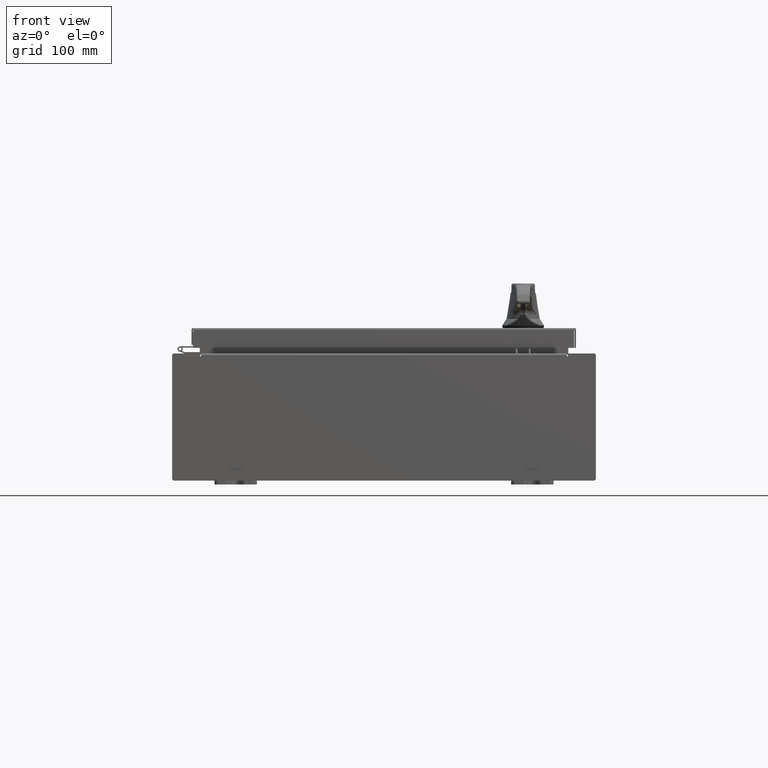
[diagram: clean part render]
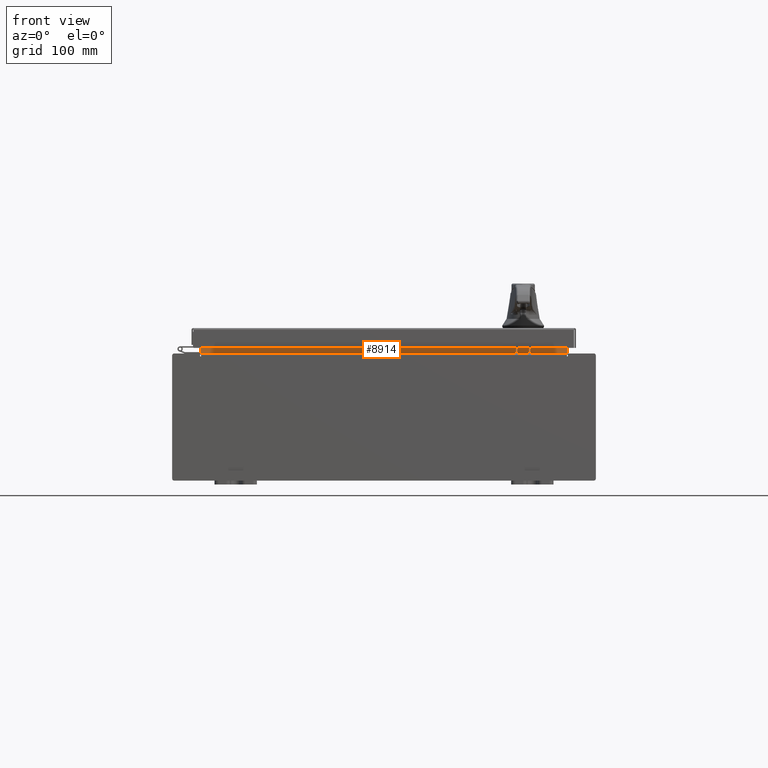
[diagram: same view with one face highlighted and labeled with its STEP entity id]
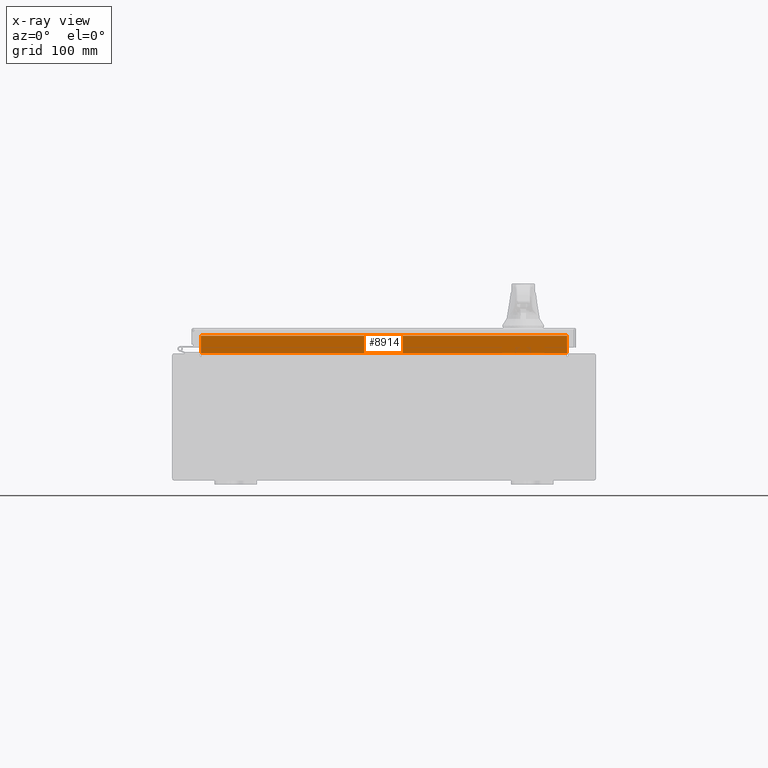
[diagram: x-ray of the same camera — body ghosted, the highlighted face saturated]
A machine part, front view. The second image highlights one B-rep face of the part: STEP entity #8914.
The next image is the same camera in x-ray: the body ghosted, the highlighted face saturated — about 0% of this face is hidden behind the body in this view.
In plain terms, the highlighted planar face has unit normal (0, -1, 0).
Its self-contained STEP definition (entity closure, byte-faithful):
#1230 = VECTOR ( 'NONE', #64705, 39.37007874015748100 ) ;
#3441 = EDGE_CURVE ( 'NONE', #21224, #22073, #47105, .T. ) ;
#4012 = DIRECTION ( 'NONE',  ( 0.0000000000000000000, -0.0000000000000000000, 1.000000000000000000 ) ) ;
#4112 = CARTESIAN_POINT ( 'NONE',  ( -8.637200000000000000, -1.300299999999999800, 3.013000000000005200 ) ) ;
#4935 = VERTEX_POINT ( 'NONE', #24293 ) ;
#5497 = CARTESIAN_POINT ( 'NONE',  ( -8.637200000000000000, -1.300300000000000000, 3.837600000000005000 ) ) ;
#7470 = DIRECTION ( 'NONE',  ( -0.0000000000000000000, -0.0000000000000000000, 1.000000000000000000 ) ) ;
#8914 = ADVANCED_FACE ( 'NONE', ( #40791 ), #107818, .T. ) ;
#8982 = VECTOR ( 'NONE', #7470, 39.37007874015748100 ) ;
#12588 = EDGE_LOOP ( 'NONE', ( #55178, #14768, #62123, #47256 ) ) ;
#13608 = AXIS2_PLACEMENT_3D ( 'NONE', #29788, #55878, #4012 ) ;
#14768 = ORIENTED_EDGE ( 'NONE', *, *, #72619, .F. ) ;
#15998 = EDGE_CURVE ( 'NONE', #101447, #4935, #32000, .T. ) ;
#18836 = LINE ( 'NONE', #4112, #1230 ) ;
#21224 = VERTEX_POINT ( 'NONE', #5497 ) ;
#22073 = VERTEX_POINT ( 'NONE', #105584 ) ;
#24293 = CARTESIAN_POINT ( 'NONE',  ( 8.637200000000000000, -1.300299999999999800, 3.837600000000005000 ) ) ;
#29788 = CARTESIAN_POINT ( 'NONE',  ( 0.0000000000000000000, -1.300299999999999800, 0.0000000000000000000 ) ) ;
#32000 = LINE ( 'NONE', #84354, #8982 ) ;
#36724 = DIRECTION ( 'NONE',  ( -1.000000000000000000, -0.0000000000000000000, -0.0000000000000000000 ) ) ;
#40791 = FACE_OUTER_BOUND ( 'NONE', #12588, .T. ) ;
#47105 = LINE ( 'NONE', #50587, #67376 ) ;
#47256 = ORIENTED_EDGE ( 'NONE', *, *, #108619, .F. ) ;
#50587 = CARTESIAN_POINT ( 'NONE',  ( -8.637200000000000000, -1.300299999999999800, 3.000000000000005300 ) ) ;
#55178 = ORIENTED_EDGE ( 'NONE', *, *, #3441, .F. ) ;
#55878 = DIRECTION ( 'NONE',  ( 0.0000000000000000000, 1.000000000000000000, 0.0000000000000000000 ) ) ;
#62123 = ORIENTED_EDGE ( 'NONE', *, *, #15998, .F. ) ;
#64705 = DIRECTION ( 'NONE',  ( 1.000000000000000000, 0.0000000000000000000, -6.325772226333218300E-017 ) ) ;
#67376 = VECTOR ( 'NONE', #93838, 39.37007874015748100 ) ;
#72619 = EDGE_CURVE ( 'NONE', #4935, #21224, #111642, .T. ) ;
#84354 = CARTESIAN_POINT ( 'NONE',  ( 8.637200000000000000, -1.300299999999999800, 3.925300000000005300 ) ) ;
#88553 = CARTESIAN_POINT ( 'NONE',  ( 8.637200000000000000, -1.300300000000000000, 3.837600000000005000 ) ) ;
#91326 = VECTOR ( 'NONE', #36724, 39.37007874015748100 ) ;
#93838 = DIRECTION ( 'NONE',  ( -0.0000000000000000000, -0.0000000000000000000, -1.000000000000000000 ) ) ;
#99462 = CARTESIAN_POINT ( 'NONE',  ( 8.637199999999996400, -1.300299999999999800, 3.013000000000004800 ) ) ;
#101447 = VERTEX_POINT ( 'NONE', #99462 ) ;
#105584 = CARTESIAN_POINT ( 'NONE',  ( -8.637200000000000000, -1.300299999999999800, 3.013000000000004800 ) ) ;
#107818 = PLANE ( 'NONE',  #13608 ) ;
#108619 = EDGE_CURVE ( 'NONE', #22073, #101447, #18836, .T. ) ;
#111642 = LINE ( 'NONE', #88553, #91326 ) ;